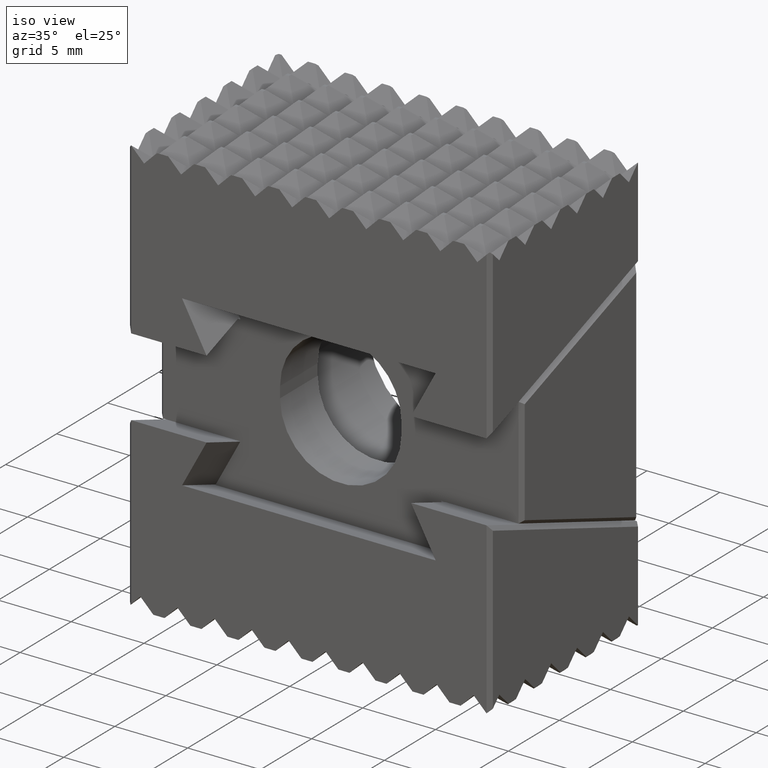
[diagram: clean part render]
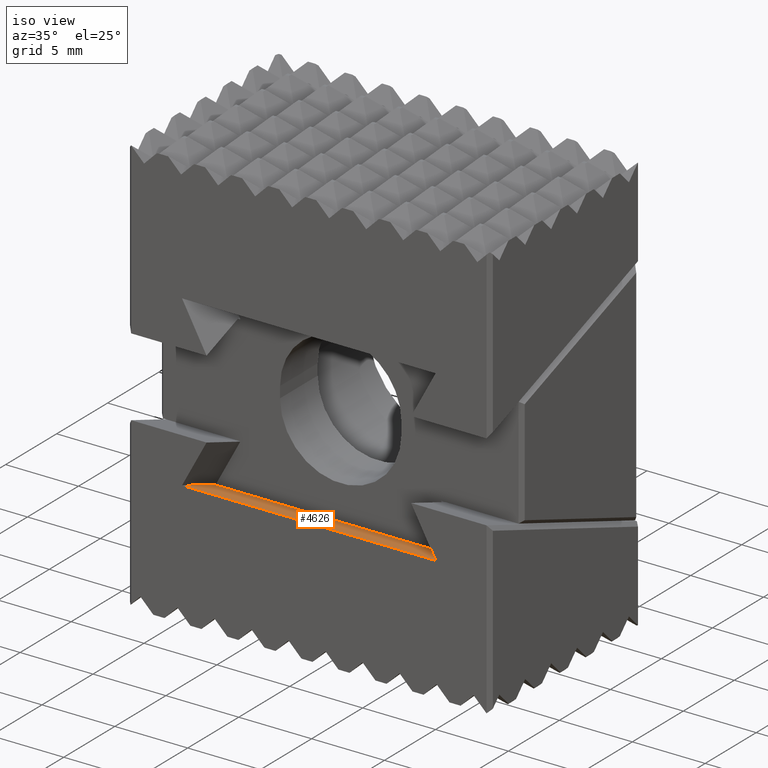
[diagram: same view with one face highlighted and labeled with its STEP entity id]
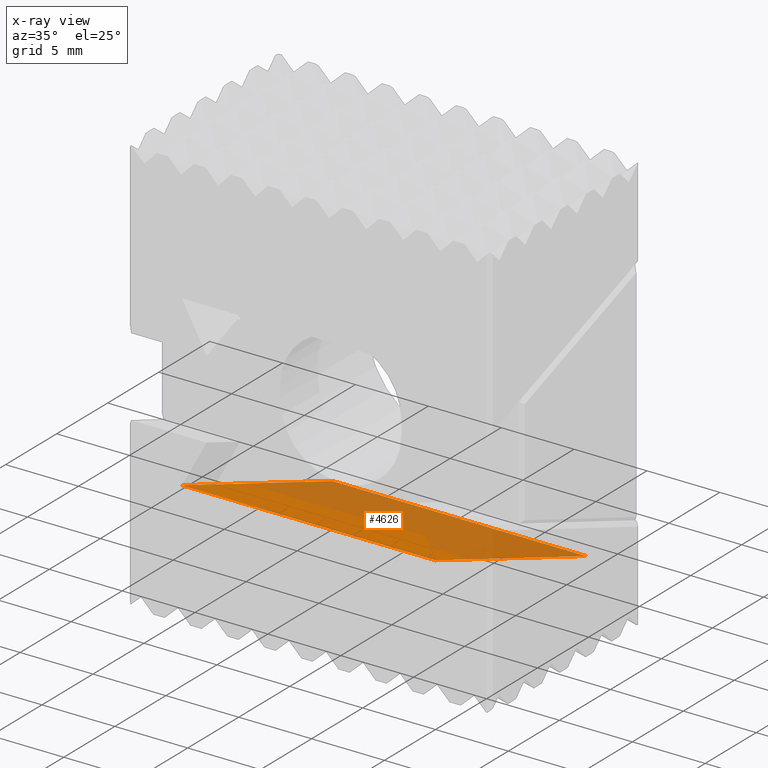
[diagram: x-ray of the same camera — body ghosted, the highlighted face saturated]
A machine part, iso view. The second image highlights one B-rep face of the part: STEP entity #4626.
The next image is the same camera in x-ray: the body ghosted, the highlighted face saturated — about 62% of this face is hidden behind the body in this view.
In plain terms, the highlighted planar face has unit normal (0, -0.342, -0.9397).
Its self-contained STEP definition (entity closure, byte-faithful):
#129 = VECTOR ( 'NONE', #3670, 39.37007874015748143 ) ;
#530 = EDGE_CURVE ( 'NONE', #5393, #9794, #5589, .T. ) ;
#1686 = CARTESIAN_POINT ( 'NONE',  ( 0.1196643637119285536, 0.6235542664935459500, -0.3426025403784442869 ) ) ;
#2540 = LINE ( 'NONE', #9717, #10268 ) ;
#2978 = LINE ( 'NONE', #5455, #18929 ) ;
#3670 = DIRECTION ( 'NONE',  ( 0.0000000000000000000, 8.651438588012386691E-33, -1.000000000000000000 ) ) ;
#4626 = ADVANCED_FACE ( 'NONE', ( #11367 ), #19492, .F. ) ;
#5393 = VERTEX_POINT ( 'NONE', #14176 ) ;
#5455 = CARTESIAN_POINT ( 'NONE',  ( 0.3466195561652701262, 0.0000000000000000000, 0.4899999999999998246 ) ) ;
#5589 = LINE ( 'NONE', #1686, #17408 ) ;
#5616 = DIRECTION ( 'NONE',  ( -0.9396926207859105373, -0.3420201433256631063, -4.105366594701613728E-48 ) ) ;
#6548 = VERTEX_POINT ( 'NONE', #12642 ) ;
#7066 = DIRECTION ( 'NONE',  ( 0.0000000000000000000, -8.651438588012386691E-33, 1.000000000000000000 ) ) ;
#7935 = DIRECTION ( 'NONE',  ( 0.3420201433256630508, -0.9396926207859103153, 6.162975822039154730E-33 ) ) ;
#7956 = ORIENTED_EDGE ( 'NONE', *, *, #530, .F. ) ;
#8051 = ORIENTED_EDGE ( 'NONE', *, *, #11837, .T. ) ;
#8375 = LINE ( 'NONE', #12909, #129 ) ;
#9116 = VERTEX_POINT ( 'NONE', #11148 ) ;
#9717 = CARTESIAN_POINT ( 'NONE',  ( 0.1196643637119285536, 0.6235542664935459500, 0.3426025403784442869 ) ) ;
#9794 = VERTEX_POINT ( 'NONE', #13504 ) ;
#10268 = VECTOR ( 'NONE', #11267, 39.37007874015748854 ) ;
#11148 = CARTESIAN_POINT ( 'NONE',  ( 0.3466195561652701818, -6.829619984160658046E-17, 0.3426025403784442314 ) ) ;
#11267 = DIRECTION ( 'NONE',  ( 0.3420201433256630508, -0.9396926207859103153, 6.162975822039154730E-33 ) ) ;
#11361 = AXIS2_PLACEMENT_3D ( 'NONE', #13305, #5616, #16435 ) ;
#11367 = FACE_OUTER_BOUND ( 'NONE', #15243, .T. ) ;
#11837 = EDGE_CURVE ( 'NONE', #6548, #9116, #2540, .T. ) ;
#12642 = CARTESIAN_POINT ( 'NONE',  ( 0.1355168202908766939, 0.5799999999999998490, 0.3426025403784442869 ) ) ;
#12909 = CARTESIAN_POINT ( 'NONE',  ( 0.1355168202908767494, 0.5799999999999998490, 0.4899999999999998246 ) ) ;
#13305 = CARTESIAN_POINT ( 'NONE',  ( 0.1196643637119285536, 0.6235542664935459500, -0.3426025403784442869 ) ) ;
#13504 = CARTESIAN_POINT ( 'NONE',  ( 0.3466195561652700707, 1.536664496436148184E-16, -0.3426025403784442869 ) ) ;
#13679 = EDGE_CURVE ( 'NONE', #9794, #9116, #2978, .T. ) ;
#14176 = CARTESIAN_POINT ( 'NONE',  ( 0.1355168202908766939, 0.5799999999999998490, -0.3426025403784442869 ) ) ;
#15083 = ORIENTED_EDGE ( 'NONE', *, *, #15481, .F. ) ;
#15243 = EDGE_LOOP ( 'NONE', ( #7956, #15083, #8051, #19157 ) ) ;
#15481 = EDGE_CURVE ( 'NONE', #6548, #5393, #8375, .T. ) ;
#16435 = DIRECTION ( 'NONE',  ( 0.3420201433256630508, -0.9396926207859103153, 2.465190328815661345E-32 ) ) ;
#17408 = VECTOR ( 'NONE', #7935, 39.37007874015748854 ) ;
#18929 = VECTOR ( 'NONE', #7066, 39.37007874015748143 ) ;
#19157 = ORIENTED_EDGE ( 'NONE', *, *, #13679, .F. ) ;
#19492 = PLANE ( 'NONE',  #11361 ) ;